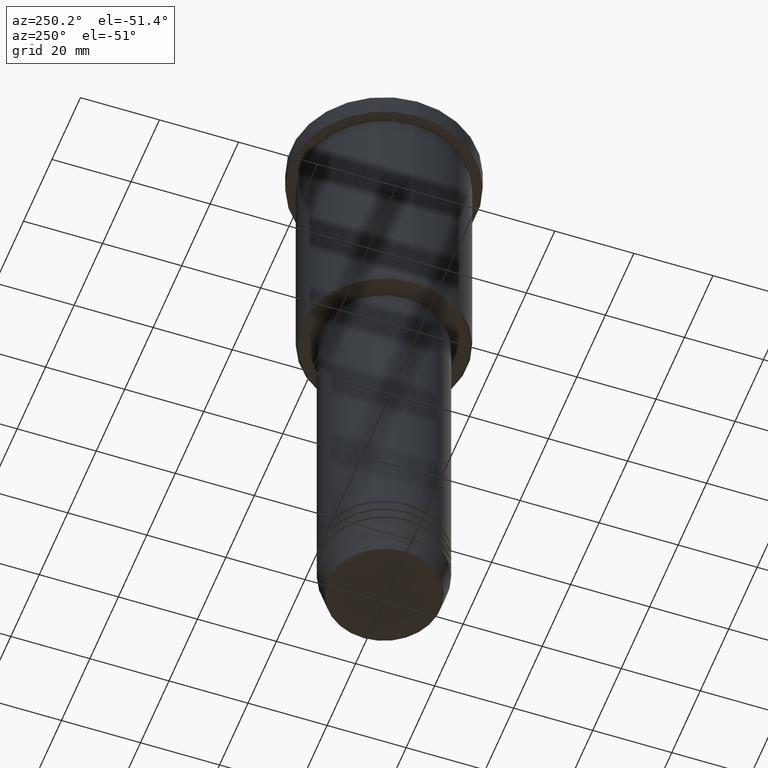
[diagram: clean part render]
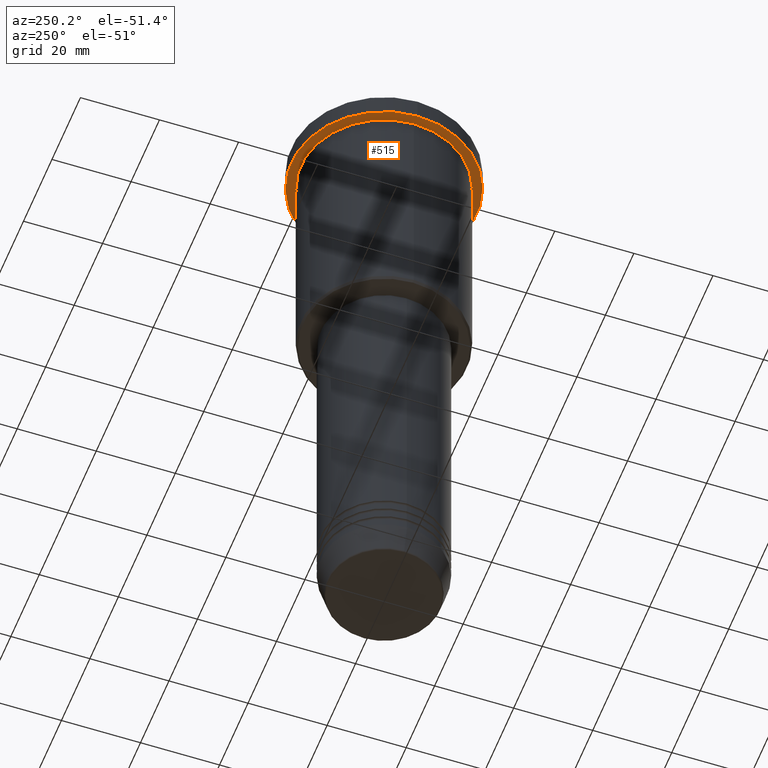
[diagram: same view with one face highlighted and labeled with its STEP entity id]
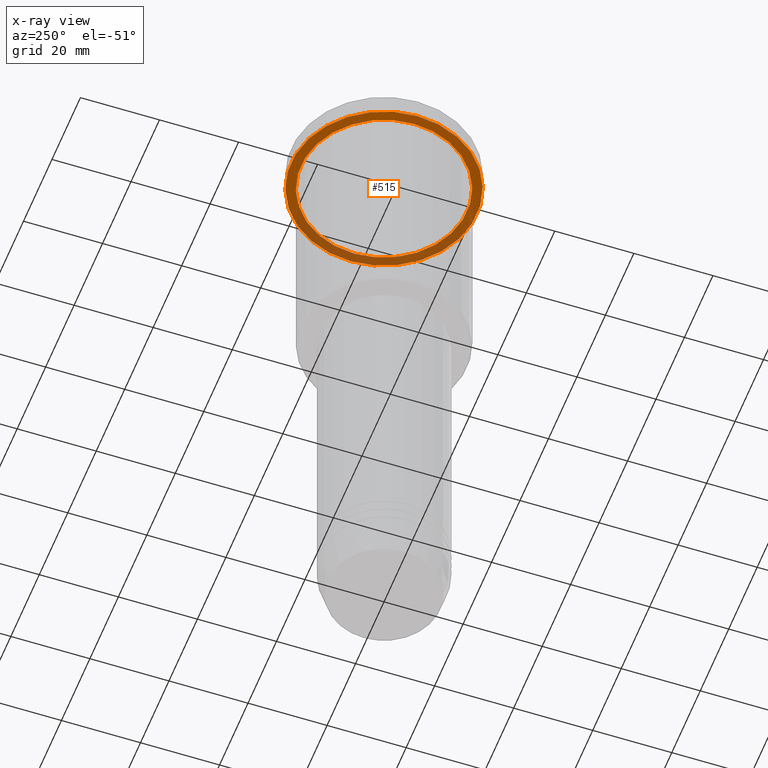
[diagram: x-ray of the same camera — body ghosted, the highlighted face saturated]
A machine part, auxiliary view. The second image highlights one B-rep face of the part: STEP entity #515.
The next image is the same camera in x-ray: the body ghosted, the highlighted face saturated — about 39% of this face is hidden behind the body in this view.
In plain terms, the highlighted planar face has unit normal (0, 0, -1).
Its self-contained STEP definition (entity closure, byte-faithful):
#2 = CIRCLE ( 'NONE', #487, 21.00000000000000000 ) ;
#25 = ORIENTED_EDGE ( 'NONE', *, *, #465, .F. ) ;
#37 = VERTEX_POINT ( 'NONE', #1072 ) ;
#82 = ORIENTED_EDGE ( 'NONE', *, *, #229, .F. ) ;
#144 = CARTESIAN_POINT ( 'NONE',  ( 0.000000000000000000, 0.000000000000000000, -5.999999999999994671 ) ) ;
#148 = AXIS2_PLACEMENT_3D ( 'NONE', #369, #361, #1117 ) ;
#167 = AXIS2_PLACEMENT_3D ( 'NONE', #660, #964, #866 ) ;
#170 = CARTESIAN_POINT ( 'NONE',  ( 0.000000000000000000, 0.000000000000000000, -5.999999999999994671 ) ) ;
#226 = PLANE ( 'NONE',  #167 ) ;
#229 = EDGE_CURVE ( 'NONE', #432, #933, #344, .T. ) ;
#261 = EDGE_CURVE ( 'NONE', #349, #37, #327, .T. ) ;
#305 = FACE_OUTER_BOUND ( 'NONE', #970, .T. ) ;
#320 = DIRECTION ( 'NONE',  ( -0.000000000000000000, -0.000000000000000000, 1.000000000000000000 ) ) ;
#327 = CIRCLE ( 'NONE', #148, 21.00000000000000000 ) ;
#344 = CIRCLE ( 'NONE', #574, 23.50000000000000000 ) ;
#349 = VERTEX_POINT ( 'NONE', #365 ) ;
#361 = DIRECTION ( 'NONE',  ( -0.000000000000000000, -0.000000000000000000, 1.000000000000000000 ) ) ;
#365 = CARTESIAN_POINT ( 'NONE',  ( 21.00000000000000000, 2.571758278209441661E-15, -5.999999999999994671 ) ) ;
#369 = CARTESIAN_POINT ( 'NONE',  ( 0.000000000000000000, 0.000000000000000000, -5.999999999999994671 ) ) ;
#405 = DIRECTION ( 'NONE',  ( -1.000000000000000000, 0.000000000000000000, 0.000000000000000000 ) ) ;
#432 = VERTEX_POINT ( 'NONE', #844 ) ;
#465 = EDGE_CURVE ( 'NONE', #933, #432, #847, .T. ) ;
#481 = EDGE_CURVE ( 'NONE', #37, #349, #2, .T. ) ;
#487 = AXIS2_PLACEMENT_3D ( 'NONE', #144, #320, #405 ) ;
#511 = DIRECTION ( 'NONE',  ( -0.000000000000000000, -0.000000000000000000, 1.000000000000000000 ) ) ;
#515 = ADVANCED_FACE ( 'NONE', ( #1161, #305 ), #226, .T. ) ;
#558 = EDGE_LOOP ( 'NONE', ( #778, #1011 ) ) ;
#574 = AXIS2_PLACEMENT_3D ( 'NONE', #170, #805, #783 ) ;
#660 = CARTESIAN_POINT ( 'NONE',  ( 0.000000000000000000, 23.50000000000000000, -5.999999999999994671 ) ) ;
#773 = DIRECTION ( 'NONE',  ( 1.000000000000000000, 0.000000000000000000, 0.000000000000000000 ) ) ;
#778 = ORIENTED_EDGE ( 'NONE', *, *, #481, .T. ) ;
#783 = DIRECTION ( 'NONE',  ( 1.000000000000000000, 0.000000000000000000, 0.000000000000000000 ) ) ;
#805 = DIRECTION ( 'NONE',  ( -0.000000000000000000, -0.000000000000000000, 1.000000000000000000 ) ) ;
#844 = CARTESIAN_POINT ( 'NONE',  ( 23.50000000000000000, 0.000000000000000000, -5.999999999999994671 ) ) ;
#847 = CIRCLE ( 'NONE', #1016, 23.50000000000000000 ) ;
#853 = CARTESIAN_POINT ( 'NONE',  ( 0.000000000000000000, 0.000000000000000000, -5.999999999999994671 ) ) ;
#866 = DIRECTION ( 'NONE',  ( -1.000000000000000000, 0.000000000000000000, -0.000000000000000000 ) ) ;
#883 = CARTESIAN_POINT ( 'NONE',  ( -23.50000000000000000, 2.877919977996280320E-15, -5.999999999999994671 ) ) ;
#933 = VERTEX_POINT ( 'NONE', #883 ) ;
#964 = DIRECTION ( 'NONE',  ( 0.000000000000000000, 0.000000000000000000, -1.000000000000000000 ) ) ;
#970 = EDGE_LOOP ( 'NONE', ( #82, #25 ) ) ;
#1011 = ORIENTED_EDGE ( 'NONE', *, *, #261, .T. ) ;
#1016 = AXIS2_PLACEMENT_3D ( 'NONE', #853, #511, #773 ) ;
#1072 = CARTESIAN_POINT ( 'NONE',  ( -21.00000000000000000, 0.000000000000000000, -5.999999999999994671 ) ) ;
#1117 = DIRECTION ( 'NONE',  ( -1.000000000000000000, 0.000000000000000000, 0.000000000000000000 ) ) ;
#1161 = FACE_BOUND ( 'NONE', #558, .T. ) ;